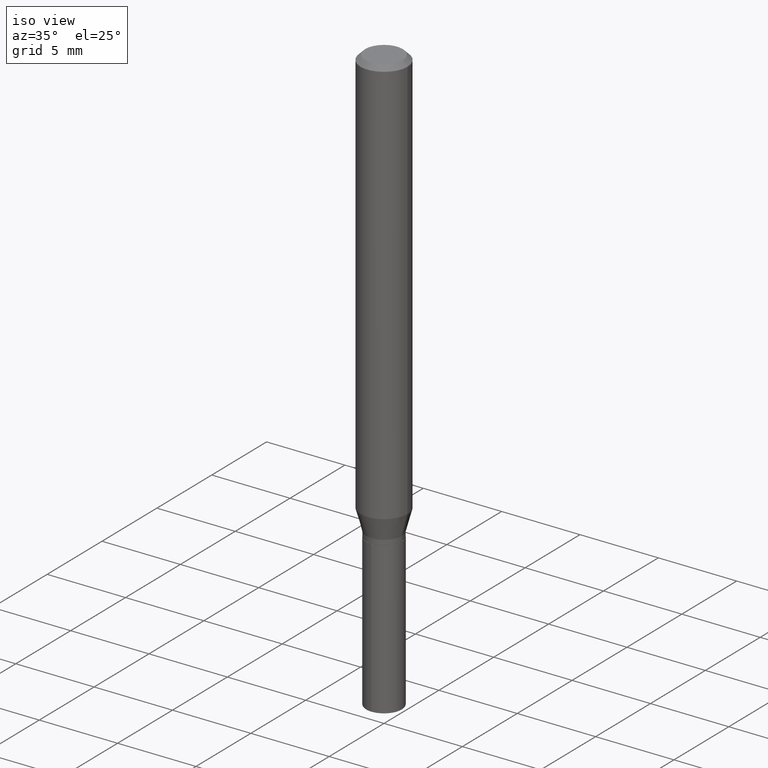
[diagram: clean part render]
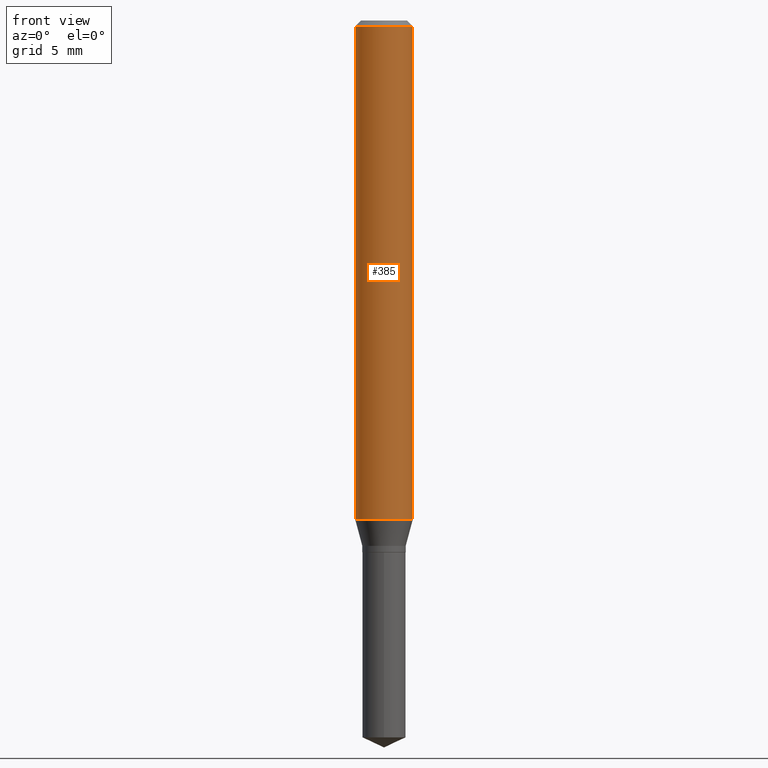
[diagram: tour spotlight — one face highlighted and labeled with its STEP entity id]
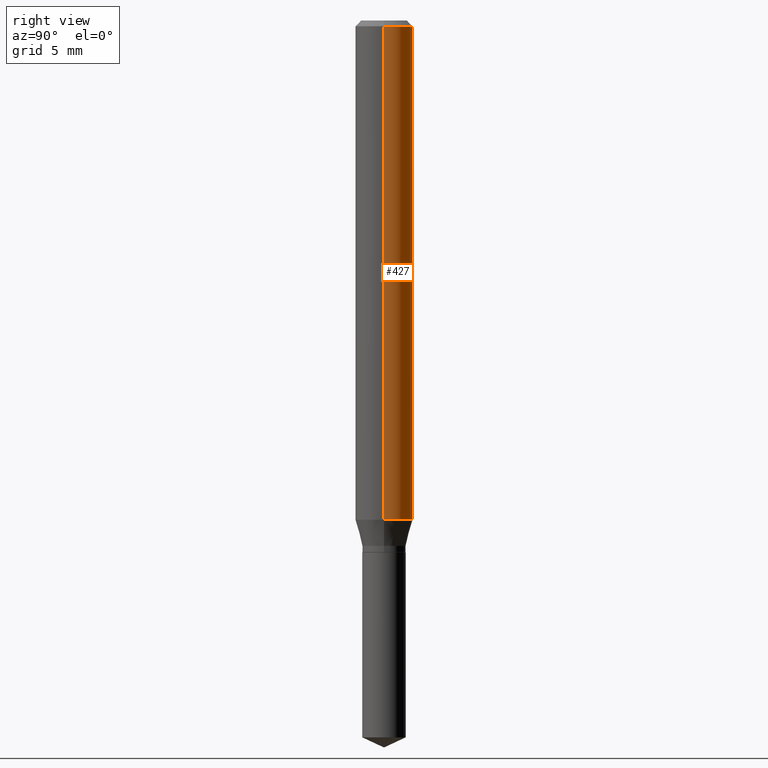
[diagram: tour spotlight — one face highlighted and labeled with its STEP entity id]
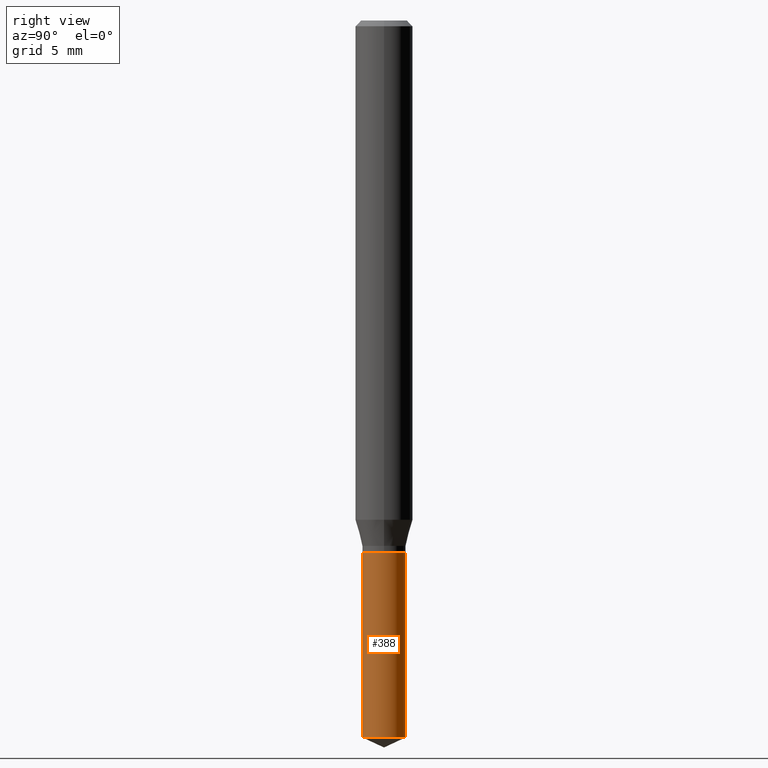
[diagram: tour spotlight — one face highlighted and labeled with its STEP entity id]
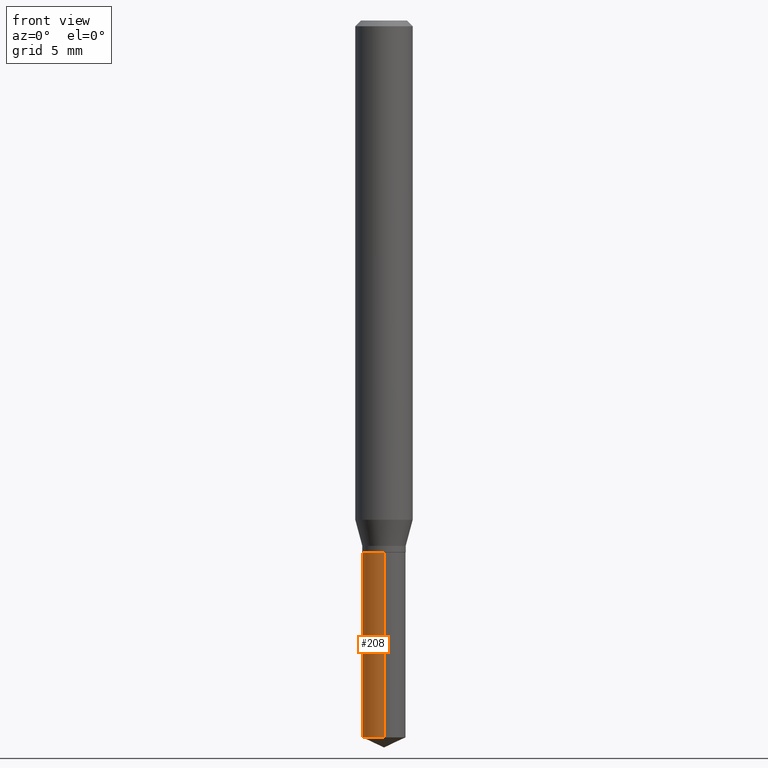
[diagram: tour spotlight — one face highlighted and labeled with its STEP entity id]
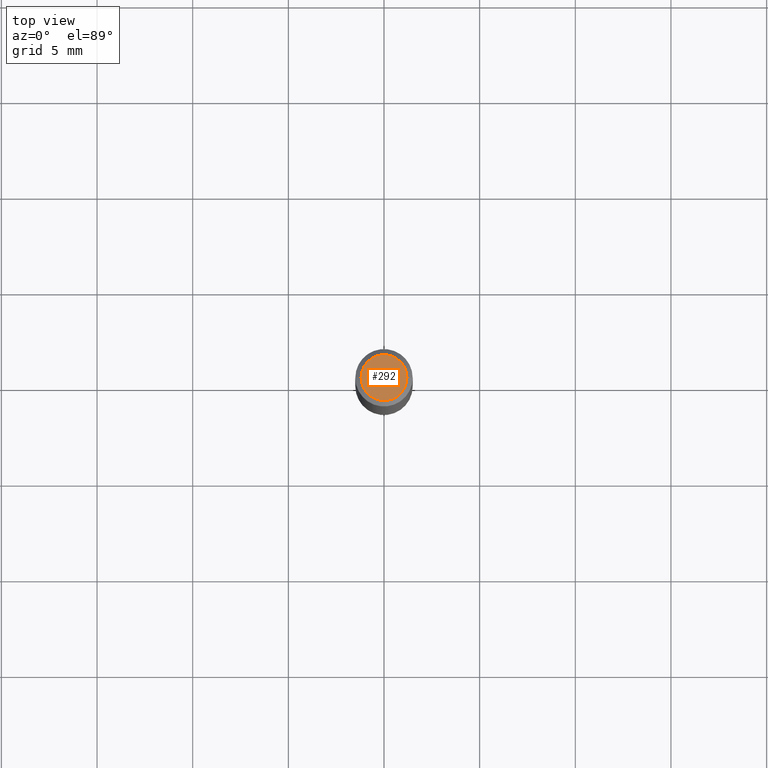
[diagram: tour spotlight — one face highlighted and labeled with its STEP entity id]
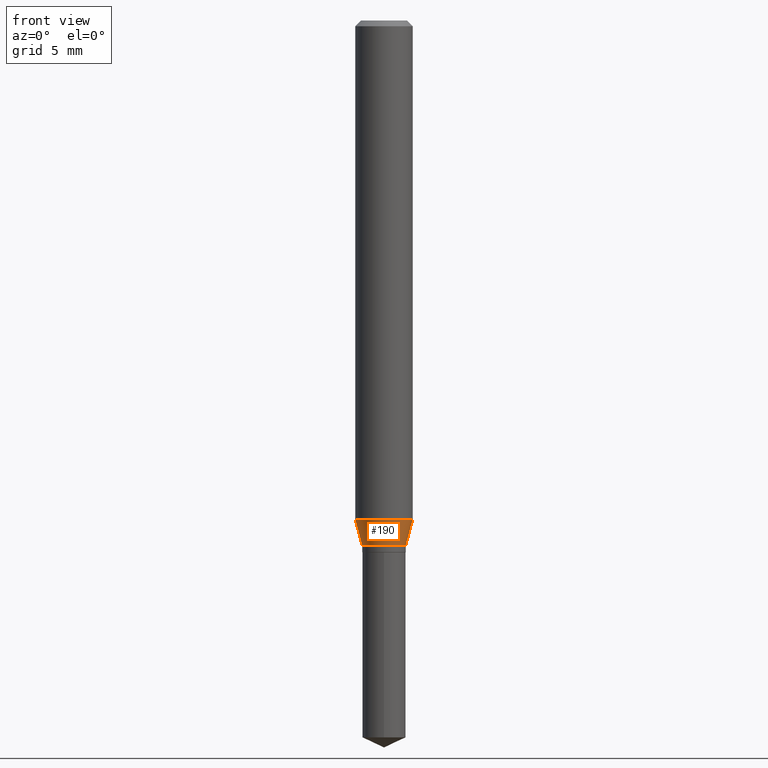
[diagram: tour spotlight — one face highlighted and labeled with its STEP entity id]
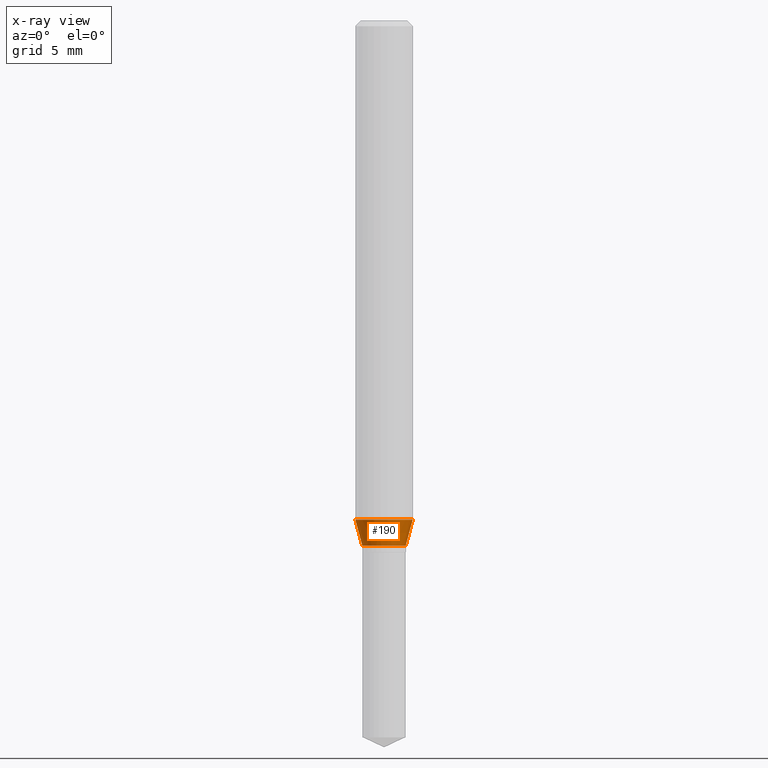
[diagram: x-ray of the same camera — body ghosted, this tour face saturated]
A machine part: a face-by-face anatomy tour. The part has 17 B-rep faces; the first image is the clean iso view, then the 6 largest visible faces are spotlighted one at a time (largest first), each with its STEP entity span.

Face 1 — front view, entity #385. In plain terms, the highlighted cylindrical surface (edge-blend (fillet) strip) has radius 1.4999 mm, axis along (-0, 0, 1).
Definition (entity closure, byte-faithful):
#8 = DIRECTION ( 'NONE',  ( 1.000000000000000000, -6.982962677686265133E-15, 0.000000000000000000 ) ) ;
#26 = CARTESIAN_POINT ( 'NONE',  ( 2.512829417863088647E-29, -3.587654439907360730E-15, -1.027545070911386027 ) ) ;
#29 = DIRECTION ( 'NONE',  ( 1.000000000000000000, -6.982962677686266711E-15, 0.000000000000000000 ) ) ;
#35 = EDGE_CURVE ( 'NONE', #370, #151, #401, .T. ) ;
#61 = EDGE_CURVE ( 'NONE', #111, #370, #284, .T. ) ;
#68 = VECTOR ( 'NONE', #441, 39.37007874015748143 ) ;
#97 = VECTOR ( 'NONE', #131, 39.37007874015748143 ) ;
#111 = VERTEX_POINT ( 'NONE', #130 ) ;
#120 = VERTEX_POINT ( 'NONE', #406 ) ;
#124 = EDGE_LOOP ( 'NONE', ( #179, #349, #251, #449 ) ) ;
#130 = CARTESIAN_POINT ( 'NONE',  ( -0.05905000000000013016, -3.168078954441021238E-15, -1.027545070911386027 ) ) ;
#131 = DIRECTION ( 'NONE',  ( -2.445468806185136877E-29, 3.491481338843145188E-15, 1.000000000000000000 ) ) ;
#151 = VERTEX_POINT ( 'NONE', #236 ) ;
#157 = EDGE_CURVE ( 'NONE', #111, #120, #294, .T. ) ;
#170 = CYLINDRICAL_SURFACE ( 'NONE', #442, 0.05905000000000006771 ) ;
#173 = CARTESIAN_POINT ( 'NONE',  ( 0.05905000000000006771, -4.123439461173745257E-16, 2.879382386107503723E-30 ) ) ;
#179 = ORIENTED_EDGE ( 'NONE', *, *, #61, .F. ) ;
#199 = CARTESIAN_POINT ( 'NONE',  ( -0.05904999999999999832, -1.394868931793208948E-15, -0.01181000000000007738 ) ) ;
#203 = CARTESIAN_POINT ( 'NONE',  ( 2.888098660104665518E-31, -4.123439461173782112E-17, -0.01181000000000007738 ) ) ;
#204 = FACE_OUTER_BOUND ( 'NONE', #124, .T. ) ;
#236 = CARTESIAN_POINT ( 'NONE',  ( 0.05904999999999999832, -4.535783407291118600E-16, -0.01181000000000007738 ) ) ;
#243 = CARTESIAN_POINT ( 'NONE',  ( -0.05905000000000006771, 4.195754854663396409E-16, -2.904631170795525045E-30 ) ) ;
#247 = LINE ( 'NONE', #173, #97 ) ;
#251 = ORIENTED_EDGE ( 'NONE', *, *, #402, .T. ) ;
#273 = DIRECTION ( 'NONE',  ( -2.445468806185136597E-29, 3.491481338843145583E-15, 1.000000000000000000 ) ) ;
#284 = LINE ( 'NONE', #243, #68 ) ;
#294 = CIRCLE ( 'NONE', #451, 0.05905000000000013016 ) ;
#325 = DIRECTION ( 'NONE',  ( 1.000000000000000000, -6.982962677686266711E-15, 4.876176775795936353E-29 ) ) ;
#349 = ORIENTED_EDGE ( 'NONE', *, *, #157, .T. ) ;
#368 = DIRECTION ( 'NONE',  ( -2.445468806185136597E-29, 3.491481338843145583E-15, 1.000000000000000000 ) ) ;
#370 = VERTEX_POINT ( 'NONE', #199 ) ;
#385 = ADVANCED_FACE ( 'NONE', ( #204 ), #170, .T. ) ;
#392 = DIRECTION ( 'NONE',  ( -2.445468806185136597E-29, 3.491481338843145583E-15, 1.000000000000000000 ) ) ;
#401 = CIRCLE ( 'NONE', #462, 0.05904999999999999832 ) ;
#402 = EDGE_CURVE ( 'NONE', #120, #151, #247, .T. ) ;
#406 = CARTESIAN_POINT ( 'NONE',  ( 0.05905000000000013016, -3.999998386024736439E-15, -1.027545070911386027 ) ) ;
#430 = CARTESIAN_POINT ( 'NONE',  ( 0.000000000000000000, 0.000000000000000000, 0.000000000000000000 ) ) ;
#441 = DIRECTION ( 'NONE',  ( -2.445468806185136877E-29, 3.491481338843145188E-15, 1.000000000000000000 ) ) ;
#442 = AXIS2_PLACEMENT_3D ( 'NONE', #430, #368, #325 ) ;
#449 = ORIENTED_EDGE ( 'NONE', *, *, #35, .F. ) ;
#451 = AXIS2_PLACEMENT_3D ( 'NONE', #26, #392, #8 ) ;
#462 = AXIS2_PLACEMENT_3D ( 'NONE', #203, #273, #29 ) ;

Face 2 — right view, entity #427. In plain terms, the highlighted cylindrical surface (edge-blend (fillet) strip) has radius 1.4999 mm, axis along (-0, 0, 1).
Definition (entity closure, byte-faithful):
#37 = EDGE_CURVE ( 'NONE', #120, #111, #369, .T. ) ;
#55 = DIRECTION ( 'NONE',  ( 1.000000000000000000, -6.982962677686266711E-15, 0.000000000000000000 ) ) ;
#58 = DIRECTION ( 'NONE',  ( 1.000000000000000000, -6.982962677686266711E-15, 4.876176775795936353E-29 ) ) ;
#61 = EDGE_CURVE ( 'NONE', #111, #370, #284, .T. ) ;
#64 = AXIS2_PLACEMENT_3D ( 'NONE', #478, #237, #55 ) ;
#68 = VECTOR ( 'NONE', #441, 39.37007874015748143 ) ;
#90 = EDGE_CURVE ( 'NONE', #151, #370, #298, .T. ) ;
#97 = VECTOR ( 'NONE', #131, 39.37007874015748143 ) ;
#111 = VERTEX_POINT ( 'NONE', #130 ) ;
#120 = VERTEX_POINT ( 'NONE', #406 ) ;
#128 = FACE_OUTER_BOUND ( 'NONE', #461, .T. ) ;
#130 = CARTESIAN_POINT ( 'NONE',  ( -0.05905000000000013016, -3.168078954441021238E-15, -1.027545070911386027 ) ) ;
#131 = DIRECTION ( 'NONE',  ( -2.445468806185136877E-29, 3.491481338843145188E-15, 1.000000000000000000 ) ) ;
#134 = CARTESIAN_POINT ( 'NONE',  ( 2.512829417863088647E-29, -3.587654439907360730E-15, -1.027545070911386027 ) ) ;
#151 = VERTEX_POINT ( 'NONE', #236 ) ;
#173 = CARTESIAN_POINT ( 'NONE',  ( 0.05905000000000006771, -4.123439461173745257E-16, 2.879382386107503723E-30 ) ) ;
#175 = DIRECTION ( 'NONE',  ( 1.000000000000000000, -6.982962677686265133E-15, 0.000000000000000000 ) ) ;
#199 = CARTESIAN_POINT ( 'NONE',  ( -0.05904999999999999832, -1.394868931793208948E-15, -0.01181000000000007738 ) ) ;
#228 = AXIS2_PLACEMENT_3D ( 'NONE', #482, #398, #58 ) ;
#236 = CARTESIAN_POINT ( 'NONE',  ( 0.05904999999999999832, -4.535783407291118600E-16, -0.01181000000000007738 ) ) ;
#237 = DIRECTION ( 'NONE',  ( -2.445468806185136597E-29, 3.491481338843145583E-15, 1.000000000000000000 ) ) ;
#243 = CARTESIAN_POINT ( 'NONE',  ( -0.05905000000000006771, 4.195754854663396409E-16, -2.904631170795525045E-30 ) ) ;
#247 = LINE ( 'NONE', #173, #97 ) ;
#253 = ORIENTED_EDGE ( 'NONE', *, *, #61, .T. ) ;
#270 = ORIENTED_EDGE ( 'NONE', *, *, #37, .T. ) ;
#277 = CYLINDRICAL_SURFACE ( 'NONE', #228, 0.05905000000000006771 ) ;
#284 = LINE ( 'NONE', #243, #68 ) ;
#298 = CIRCLE ( 'NONE', #64, 0.05904999999999999832 ) ;
#329 = ORIENTED_EDGE ( 'NONE', *, *, #90, .F. ) ;
#339 = ORIENTED_EDGE ( 'NONE', *, *, #402, .F. ) ;
#369 = CIRCLE ( 'NONE', #431, 0.05905000000000013016 ) ;
#370 = VERTEX_POINT ( 'NONE', #199 ) ;
#397 = DIRECTION ( 'NONE',  ( -2.445468806185136597E-29, 3.491481338843145583E-15, 1.000000000000000000 ) ) ;
#398 = DIRECTION ( 'NONE',  ( -2.445468806185136597E-29, 3.491481338843145583E-15, 1.000000000000000000 ) ) ;
#402 = EDGE_CURVE ( 'NONE', #120, #151, #247, .T. ) ;
#406 = CARTESIAN_POINT ( 'NONE',  ( 0.05905000000000013016, -3.999998386024736439E-15, -1.027545070911386027 ) ) ;
#427 = ADVANCED_FACE ( 'NONE', ( #128 ), #277, .T. ) ;
#431 = AXIS2_PLACEMENT_3D ( 'NONE', #134, #397, #175 ) ;
#441 = DIRECTION ( 'NONE',  ( -2.445468806185136877E-29, 3.491481338843145188E-15, 1.000000000000000000 ) ) ;
#461 = EDGE_LOOP ( 'NONE', ( #270, #253, #329, #339 ) ) ;
#478 = CARTESIAN_POINT ( 'NONE',  ( 2.888098660104665518E-31, -4.123439461173782112E-17, -0.01181000000000007738 ) ) ;
#482 = CARTESIAN_POINT ( 'NONE',  ( 0.000000000000000000, 0.000000000000000000, 0.000000000000000000 ) ) ;

Face 3 — right view, entity #388. In plain terms, the highlighted cylindrical surface (edge-blend (fillet) strip) has radius 1.1354 mm, axis along (-0, 0, 1).
Definition (entity closure, byte-faithful):
#1 = AXIS2_PLACEMENT_3D ( 'NONE', #364, #164, #395 ) ;
#19 = ORIENTED_EDGE ( 'NONE', *, *, #223, .F. ) ;
#82 = LINE ( 'NONE', #355, #299 ) ;
#92 = CARTESIAN_POINT ( 'NONE',  ( 3.176126028848008499E-16, 0.04469999999999484802, -1.475256047680471916 ) ) ;
#100 = CARTESIAN_POINT ( 'NONE',  ( -3.121384316925493074E-16, -0.04470000000000382001, -1.094499999999999806 ) ) ;
#101 = EDGE_CURVE ( 'NONE', #411, #447, #316, .T. ) ;
#103 = AXIS2_PLACEMENT_3D ( 'NONE', #474, #274, #435 ) ;
#126 = DIRECTION ( 'NONE',  ( -2.445458899330790108E-29, 3.491495526022433599E-15, 1.000000000000000000 ) ) ;
#144 = VERTEX_POINT ( 'NONE', #167 ) ;
#164 = DIRECTION ( 'NONE',  ( -2.445458899330790108E-29, 3.491495526022433205E-15, 1.000000000000000000 ) ) ;
#167 = CARTESIAN_POINT ( 'NONE',  ( -3.121384316925400383E-16, -0.04470000000000515228, -1.475256047680471250 ) ) ;
#172 = CARTESIAN_POINT ( 'NONE',  ( 3.176126028847914329E-16, 0.04469999999999617335, -1.094500000000000028 ) ) ;
#174 = EDGE_CURVE ( 'NONE', #383, #447, #438, .T. ) ;
#183 = ORIENTED_EDGE ( 'NONE', *, *, #174, .F. ) ;
#192 = EDGE_LOOP ( 'NONE', ( #335, #450, #183, #19 ) ) ;
#201 = CARTESIAN_POINT ( 'NONE',  ( 3.176126028848008006E-16, 0.04469999999999617335, -1.094500000000000028 ) ) ;
#205 = EDGE_CURVE ( 'NONE', #144, #411, #400, .T. ) ;
#223 = EDGE_CURVE ( 'NONE', #144, #383, #82, .T. ) ;
#238 = CARTESIAN_POINT ( 'NONE',  ( 3.607688873643859984E-29, -5.150834362346173430E-15, -1.475256047680471694 ) ) ;
#240 = DIRECTION ( 'NONE',  ( -6.982962677686265922E-15, -1.000000000000000000, 6.111516764349582753E-15 ) ) ;
#274 = DIRECTION ( 'NONE',  ( -2.445458899330790108E-29, 3.491495526022433205E-15, 1.000000000000000000 ) ) ;
#299 = VECTOR ( 'NONE', #343, 39.37007874015748143 ) ;
#316 = LINE ( 'NONE', #172, #320 ) ;
#320 = VECTOR ( 'NONE', #126, 39.37007874015748143 ) ;
#332 = AXIS2_PLACEMENT_3D ( 'NONE', #238, #404, #240 ) ;
#335 = ORIENTED_EDGE ( 'NONE', *, *, #205, .T. ) ;
#343 = DIRECTION ( 'NONE',  ( -2.445458899330790108E-29, 3.491495526022433599E-15, 1.000000000000000000 ) ) ;
#355 = CARTESIAN_POINT ( 'NONE',  ( -3.121384316925493074E-16, -0.04470000000000382001, -1.094499999999999806 ) ) ;
#360 = FACE_OUTER_BOUND ( 'NONE', #192, .T. ) ;
#364 = CARTESIAN_POINT ( 'NONE',  ( 2.676565608369631794E-29, -3.821426325363822773E-15, -1.094499999999999806 ) ) ;
#383 = VERTEX_POINT ( 'NONE', #100 ) ;
#388 = ADVANCED_FACE ( 'NONE', ( #360 ), #480, .T. ) ;
#395 = DIRECTION ( 'NONE',  ( -6.982962677686265922E-15, -1.000000000000000000, 3.055758382174791377E-15 ) ) ;
#400 = CIRCLE ( 'NONE', #332, 0.04469999999999999668 ) ;
#404 = DIRECTION ( 'NONE',  ( -2.445458899330790108E-29, 3.491495526022433205E-15, 1.000000000000000000 ) ) ;
#411 = VERTEX_POINT ( 'NONE', #92 ) ;
#435 = DIRECTION ( 'NONE',  ( -6.982962677686265922E-15, -1.000000000000000000, 3.055758382174791377E-15 ) ) ;
#438 = CIRCLE ( 'NONE', #1, 0.04469999999999999668 ) ;
#447 = VERTEX_POINT ( 'NONE', #201 ) ;
#450 = ORIENTED_EDGE ( 'NONE', *, *, #101, .T. ) ;
#474 = CARTESIAN_POINT ( 'NONE',  ( 2.676565608369631794E-29, -3.821426325363822773E-15, -1.094499999999999806 ) ) ;
#480 = CYLINDRICAL_SURFACE ( 'NONE', #103, 0.04469999999999999668 ) ;

Face 4 — front view, entity #208. In plain terms, the highlighted cylindrical surface (edge-blend (fillet) strip) has radius 1.1354 mm, axis along (-0, 0, 1).
Definition (entity closure, byte-faithful):
#4 = CIRCLE ( 'NONE', #340, 0.04469999999999999668 ) ;
#5 = CIRCLE ( 'NONE', #88, 0.04469999999999999668 ) ;
#30 = CYLINDRICAL_SURFACE ( 'NONE', #74, 0.04469999999999999668 ) ;
#49 = DIRECTION ( 'NONE',  ( -2.445458899330790108E-29, 3.491495526022433205E-15, 1.000000000000000000 ) ) ;
#52 = DIRECTION ( 'NONE',  ( -6.982962677686265922E-15, -1.000000000000000000, 6.111516764349582753E-15 ) ) ;
#71 = DIRECTION ( 'NONE',  ( -2.445458899330790108E-29, 3.491495526022433205E-15, 1.000000000000000000 ) ) ;
#74 = AXIS2_PLACEMENT_3D ( 'NONE', #307, #71, #269 ) ;
#82 = LINE ( 'NONE', #355, #299 ) ;
#88 = AXIS2_PLACEMENT_3D ( 'NONE', #116, #49, #52 ) ;
#92 = CARTESIAN_POINT ( 'NONE',  ( 3.176126028848008499E-16, 0.04469999999999484802, -1.475256047680471916 ) ) ;
#100 = CARTESIAN_POINT ( 'NONE',  ( -3.121384316925493074E-16, -0.04470000000000382001, -1.094499999999999806 ) ) ;
#101 = EDGE_CURVE ( 'NONE', #411, #447, #316, .T. ) ;
#116 = CARTESIAN_POINT ( 'NONE',  ( 3.607688873643859984E-29, -5.150834362346173430E-15, -1.475256047680471694 ) ) ;
#118 = EDGE_CURVE ( 'NONE', #447, #383, #4, .T. ) ;
#122 = ORIENTED_EDGE ( 'NONE', *, *, #223, .T. ) ;
#126 = DIRECTION ( 'NONE',  ( -2.445458899330790108E-29, 3.491495526022433599E-15, 1.000000000000000000 ) ) ;
#144 = VERTEX_POINT ( 'NONE', #167 ) ;
#167 = CARTESIAN_POINT ( 'NONE',  ( -3.121384316925400383E-16, -0.04470000000000515228, -1.475256047680471250 ) ) ;
#171 = FACE_OUTER_BOUND ( 'NONE', #188, .T. ) ;
#172 = CARTESIAN_POINT ( 'NONE',  ( 3.176126028847914329E-16, 0.04469999999999617335, -1.094500000000000028 ) ) ;
#188 = EDGE_LOOP ( 'NONE', ( #231, #258, #122, #266 ) ) ;
#201 = CARTESIAN_POINT ( 'NONE',  ( 3.176126028848008006E-16, 0.04469999999999617335, -1.094500000000000028 ) ) ;
#208 = ADVANCED_FACE ( 'NONE', ( #171 ), #30, .T. ) ;
#223 = EDGE_CURVE ( 'NONE', #144, #383, #82, .T. ) ;
#231 = ORIENTED_EDGE ( 'NONE', *, *, #101, .F. ) ;
#246 = CARTESIAN_POINT ( 'NONE',  ( 2.676565608369631794E-29, -3.821426325363822773E-15, -1.094499999999999806 ) ) ;
#258 = ORIENTED_EDGE ( 'NONE', *, *, #344, .T. ) ;
#266 = ORIENTED_EDGE ( 'NONE', *, *, #118, .F. ) ;
#269 = DIRECTION ( 'NONE',  ( -6.982962677686265922E-15, -1.000000000000000000, 3.055758382174791377E-15 ) ) ;
#299 = VECTOR ( 'NONE', #343, 39.37007874015748143 ) ;
#307 = CARTESIAN_POINT ( 'NONE',  ( 2.676565608369631794E-29, -3.821426325363822773E-15, -1.094499999999999806 ) ) ;
#316 = LINE ( 'NONE', #172, #320 ) ;
#320 = VECTOR ( 'NONE', #126, 39.37007874015748143 ) ;
#326 = DIRECTION ( 'NONE',  ( -2.445458899330790108E-29, 3.491495526022433205E-15, 1.000000000000000000 ) ) ;
#340 = AXIS2_PLACEMENT_3D ( 'NONE', #246, #326, #481 ) ;
#343 = DIRECTION ( 'NONE',  ( -2.445458899330790108E-29, 3.491495526022433599E-15, 1.000000000000000000 ) ) ;
#344 = EDGE_CURVE ( 'NONE', #411, #144, #5, .T. ) ;
#355 = CARTESIAN_POINT ( 'NONE',  ( -3.121384316925493074E-16, -0.04470000000000382001, -1.094499999999999806 ) ) ;
#383 = VERTEX_POINT ( 'NONE', #100 ) ;
#411 = VERTEX_POINT ( 'NONE', #92 ) ;
#447 = VERTEX_POINT ( 'NONE', #201 ) ;
#481 = DIRECTION ( 'NONE',  ( -6.982962677686265922E-15, -1.000000000000000000, 3.055758382174791377E-15 ) ) ;

Face 5 — top view, entity #292. In plain terms, the highlighted planar face has unit normal (0, -0, -1).
Definition (entity closure, byte-faithful):
#11 = CARTESIAN_POINT ( 'NONE',  ( 8.265746106709734507E-48, -1.180129479067563789E-33, -3.380025165646692144E-19 ) ) ;
#41 = DIRECTION ( 'NONE',  ( 1.000000000000000000, -6.982962677686266711E-15, 4.876185090822587894E-29 ) ) ;
#42 = CIRCLE ( 'NONE', #250, 0.04724000000000000421 ) ;
#70 = VERTEX_POINT ( 'NONE', #356 ) ;
#73 = FACE_OUTER_BOUND ( 'NONE', #234, .T. ) ;
#107 = CIRCLE ( 'NONE', #156, 0.04724000000000000421 ) ;
#155 = CARTESIAN_POINT ( 'NONE',  ( 8.265746106709734507E-48, -1.180129479067563789E-33, -3.380025165646692144E-19 ) ) ;
#156 = AXIS2_PLACEMENT_3D ( 'NONE', #11, #415, #160 ) ;
#160 = DIRECTION ( 'NONE',  ( 1.000000000000000000, -6.982962677686266711E-15, 4.876185090822587894E-29 ) ) ;
#185 = ORIENTED_EDGE ( 'NONE', *, *, #210, .T. ) ;
#210 = EDGE_CURVE ( 'NONE', #70, #379, #107, .T. ) ;
#227 = PLANE ( 'NONE',  #463 ) ;
#234 = EDGE_LOOP ( 'NONE', ( #257, #185 ) ) ;
#244 = CARTESIAN_POINT ( 'NONE',  ( -0.04724000000000000421, 3.504923541997677355E-16, -3.380025165670481712E-19 ) ) ;
#250 = AXIS2_PLACEMENT_3D ( 'NONE', #155, #259, #41 ) ;
#257 = ORIENTED_EDGE ( 'NONE', *, *, #293, .T. ) ;
#259 = DIRECTION ( 'NONE',  ( -2.445468806185136597E-29, 3.491481338843145583E-15, 1.000000000000000000 ) ) ;
#262 = DIRECTION ( 'NONE',  ( -1.000000000000000000, 6.982962677686265922E-15, -4.876176775795935793E-29 ) ) ;
#292 = ADVANCED_FACE ( 'NONE', ( #73 ), #227, .F. ) ;
#293 = EDGE_CURVE ( 'NONE', #379, #70, #42, .T. ) ;
#305 = CARTESIAN_POINT ( 'NONE',  ( 4.132873053354867254E-48, -5.900647395337818946E-34, -1.690012582823346072E-19 ) ) ;
#356 = CARTESIAN_POINT ( 'NONE',  ( 0.04724000000000000421, -3.852183633974369838E-16, -3.380025165621689721E-19 ) ) ;
#379 = VERTEX_POINT ( 'NONE', #244 ) ;
#390 = DIRECTION ( 'NONE',  ( 2.438088387897960049E-29, -3.491481338843145188E-15, -1.000000000000000000 ) ) ;
#415 = DIRECTION ( 'NONE',  ( -2.445468806185136597E-29, 3.491481338843145583E-15, 1.000000000000000000 ) ) ;
#463 = AXIS2_PLACEMENT_3D ( 'NONE', #305, #390, #262 ) ;

Face 6 — front view, entity #190. An x-ray twin of the same camera follows (body ghosted, this face saturated) — the face is partly hidden behind the body. In plain terms, the highlighted conical surface has half-angle 15 deg.
Definition (entity closure, byte-faithful):
#8 = DIRECTION ( 'NONE',  ( 1.000000000000000000, -6.982962677686265133E-15, 0.000000000000000000 ) ) ;
#10 = VERTEX_POINT ( 'NONE', #306 ) ;
#15 = CONICAL_SURFACE ( 'NONE', #36, 0.04469999999999999668, 0.2617993877991497409 ) ;
#17 = LINE ( 'NONE', #382, #352 ) ;
#26 = CARTESIAN_POINT ( 'NONE',  ( 2.512829417863088647E-29, -3.587654439907360730E-15, -1.027545070911386027 ) ) ;
#36 = AXIS2_PLACEMENT_3D ( 'NONE', #472, #127, #436 ) ;
#50 = EDGE_LOOP ( 'NONE', ( #106, #456, #84, #198 ) ) ;
#63 = DIRECTION ( 'NONE',  ( -0.2588190451025210725, 5.211531920934548675E-15, 0.9659258262890682012 ) ) ;
#83 = EDGE_CURVE ( 'NONE', #10, #420, #351, .T. ) ;
#84 = ORIENTED_EDGE ( 'NONE', *, *, #314, .T. ) ;
#89 = CARTESIAN_POINT ( 'NONE',  ( 0.04469999999999999668, -4.086778907115899993E-15, -1.081099999999999950 ) ) ;
#91 = CARTESIAN_POINT ( 'NONE',  ( 2.643796326366751105E-29, -3.774640475423324111E-15, -1.081099999999999950 ) ) ;
#106 = ORIENTED_EDGE ( 'NONE', *, *, #445, .F. ) ;
#111 = VERTEX_POINT ( 'NONE', #130 ) ;
#120 = VERTEX_POINT ( 'NONE', #406 ) ;
#127 = DIRECTION ( 'NONE',  ( -2.445468806185136597E-29, 3.491481338843145583E-15, 1.000000000000000000 ) ) ;
#130 = CARTESIAN_POINT ( 'NONE',  ( -0.05905000000000013016, -3.168078954441021238E-15, -1.027545070911386027 ) ) ;
#157 = EDGE_CURVE ( 'NONE', #111, #120, #294, .T. ) ;
#190 = ADVANCED_FACE ( 'NONE', ( #319 ), #15, .T. ) ;
#198 = ORIENTED_EDGE ( 'NONE', *, *, #157, .F. ) ;
#249 = AXIS2_PLACEMENT_3D ( 'NONE', #91, #324, #473 ) ;
#271 = VECTOR ( 'NONE', #63, 39.37007874015748143 ) ;
#285 = LINE ( 'NONE', #407, #271 ) ;
#294 = CIRCLE ( 'NONE', #451, 0.05905000000000013016 ) ;
#306 = CARTESIAN_POINT ( 'NONE',  ( -0.04469999999999999668, -3.479547927174097783E-15, -1.081099999999999950 ) ) ;
#314 = EDGE_CURVE ( 'NONE', #420, #120, #17, .T. ) ;
#319 = FACE_OUTER_BOUND ( 'NONE', #50, .T. ) ;
#324 = DIRECTION ( 'NONE',  ( -2.445468806185136597E-29, 3.491481338843145583E-15, 1.000000000000000000 ) ) ;
#351 = CIRCLE ( 'NONE', #249, 0.04469999999999999668 ) ;
#352 = VECTOR ( 'NONE', #459, 39.37007874015748143 ) ;
#382 = CARTESIAN_POINT ( 'NONE',  ( 0.04469999999999999668, -4.086778907115899993E-15, -1.081099999999999950 ) ) ;
#392 = DIRECTION ( 'NONE',  ( -2.445468806185136597E-29, 3.491481338843145583E-15, 1.000000000000000000 ) ) ;
#406 = CARTESIAN_POINT ( 'NONE',  ( 0.05905000000000013016, -3.999998386024736439E-15, -1.027545070911386027 ) ) ;
#407 = CARTESIAN_POINT ( 'NONE',  ( -0.04469999999999999668, -3.457027872538559598E-15, -1.081099999999999950 ) ) ;
#420 = VERTEX_POINT ( 'NONE', #89 ) ;
#436 = DIRECTION ( 'NONE',  ( 1.000000000000000000, -6.982962677686265922E-15, 0.000000000000000000 ) ) ;
#445 = EDGE_CURVE ( 'NONE', #10, #111, #285, .T. ) ;
#451 = AXIS2_PLACEMENT_3D ( 'NONE', #26, #392, #8 ) ;
#456 = ORIENTED_EDGE ( 'NONE', *, *, #83, .T. ) ;
#459 = DIRECTION ( 'NONE',  ( 0.2588190451025210725, 1.565188264969624137E-15, 0.9659258262890682012 ) ) ;
#472 = CARTESIAN_POINT ( 'NONE',  ( 2.643796326366751105E-29, -3.774640475423324111E-15, -1.081099999999999950 ) ) ;
#473 = DIRECTION ( 'NONE',  ( 1.000000000000000000, -6.982962677686265922E-15, 0.000000000000000000 ) ) ;